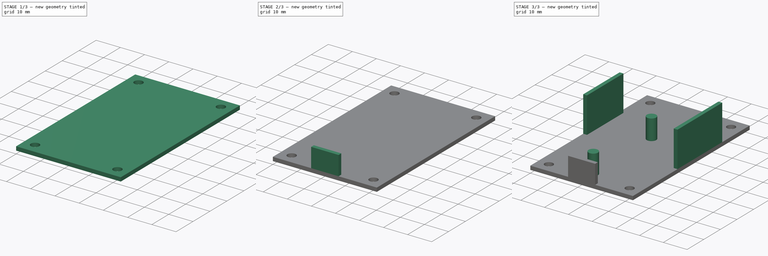
[diagram: build sequence overview — one tinted view per stage of 3, left to right]
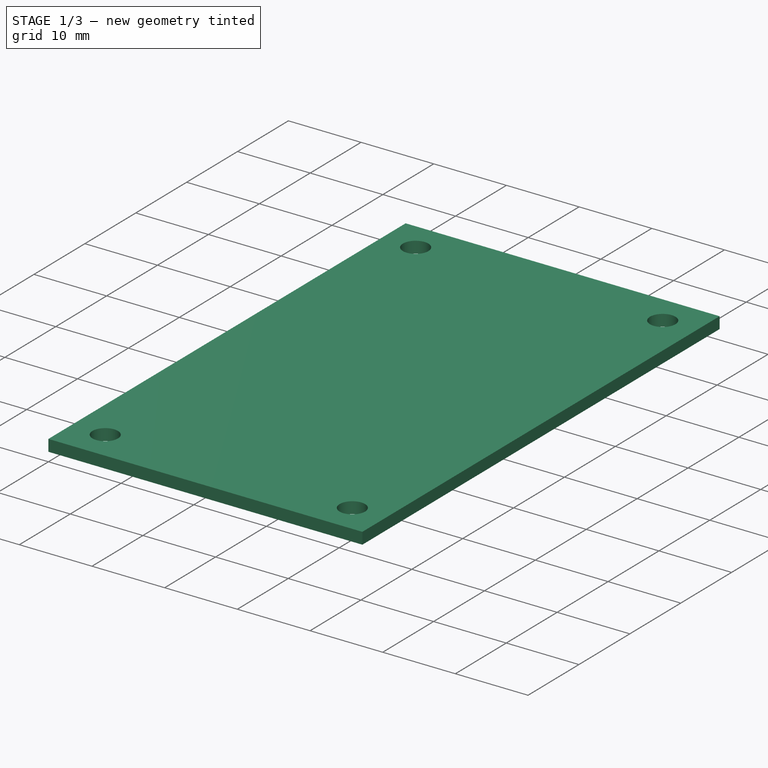
[diagram: stage 1 of 3 — iso view after this stage's code; geometry added in this stage tinted green]
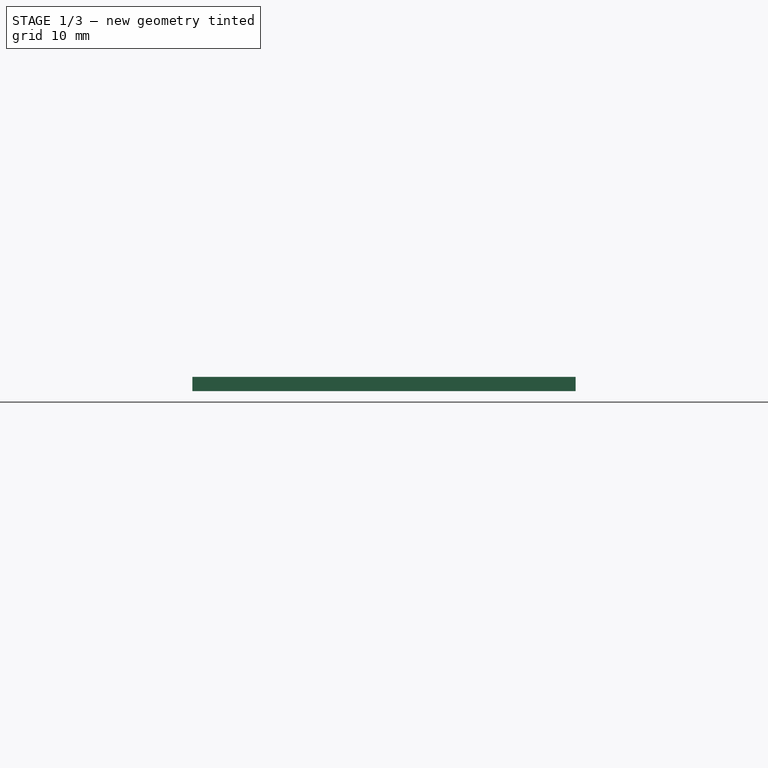
[diagram: stage 1 of 3 — front view after this stage's code; geometry added in this stage tinted green]
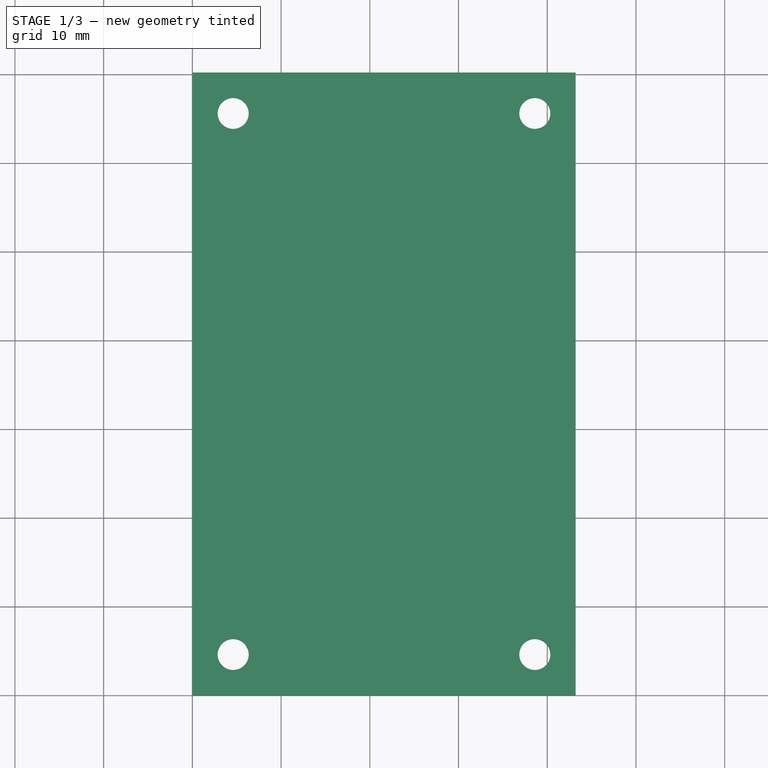
[diagram: stage 1 of 3 — top view after this stage's code; geometry added in this stage tinted green]
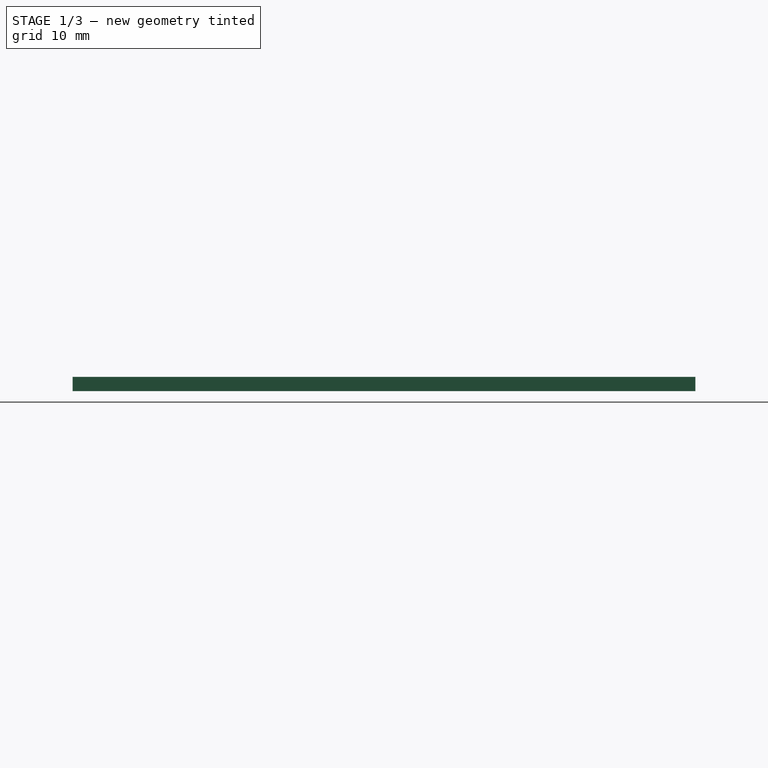
[diagram: stage 1 of 3 — right view after this stage's code; geometry added in this stage tinted green]
FCSTD DOCUMENT  (FreeCAD 0.19R)
Label: case_top
License: All rights reserved
LicenseURL: http://en.wikipedia.org/wiki/All_rights_reserved
objects: Sketcher::SketchObject×5, PartDesign::Pad×4, PartDesign::Pocket×1, PartDesign::Body×1
note: 16 computed .brp shape members not serialized (recipe doc carries the construction recipe); baked Part::Feature solids carry a one-line shape summary decoded from their .brp

FEATURE [Sketcher::SketchObject] Sketch
  FullyConstrained = true
  MapMode = 5
  Support = -> [XY_Plane]
  sketch-geometry (4):
    g0: LineSegment StartX=0 StartY=0 StartZ=0 EndX=43.2 EndY=0 EndZ=0
    g1: LineSegment StartX=43.2 StartY=0 StartZ=0 EndX=43.2 EndY=70.2 EndZ=0
    g2: LineSegment StartX=43.2 StartY=70.2 StartZ=0 EndX=0 EndY=70.2 EndZ=0
    g3: LineSegment StartX=0 StartY=70.2 StartZ=0 EndX=0 EndY=0 EndZ=0
  constraints (11):
    c: Coincident(g0,g1)
    c: Coincident(g1,g2)
    c: Coincident(g2,g3)
    c: Coincident(g3,g0)
    c: Horizontal(g0)
    c: Horizontal(g2)
    c: Vertical(g1)
    c: Vertical(g3)
    c: Coincident(g0,g-1)
    c: DistanceX(g0,g0) = 43.2
    c: DistanceY(g1,g1) = 70.2
FEATURE [PartDesign::Pad] Pad
  Direction = (1,1,1)
  Length = 1.6
  Length2 = 100
  Profile = -> Sketch
  Type = 0
FEATURE [Sketcher::SketchObject] Sketch007  label="Sketch001"
  FullyConstrained = true
  MapMode = 5
  Placement = pos=(0,0,1.6) rot=(0,0,1;0rad)
  Support = -> [Pad]
  sketch-geometry (4):
    g0: Circle CenterX=4.6 CenterY=4.6 CenterZ=0 NormalX=0 NormalY=0 NormalZ=1 AngleXU=0 Radius=1.75
    g1: Circle CenterX=38.6 CenterY=4.6 CenterZ=0 NormalX=0 NormalY=0 NormalZ=1 AngleXU=0 Radius=1.75
    g2: Circle CenterX=4.6 CenterY=65.6 CenterZ=0 NormalX=0 NormalY=0 NormalZ=1 AngleXU=0 Radius=1.75
    g3: Circle CenterX=38.6 CenterY=65.6 CenterZ=0 NormalX=0 NormalY=0 NormalZ=1 AngleXU=0 Radius=1.75
  constraints (12):
    c: Equal(g0,g1)
    c: Equal(g1,g3)
    c: Equal(g3,g2)
    c: Diameter(g3) = 3.5
    c: DistanceX(g-1,g0) = 4.6
    c: DistanceY(g-1,g0) = 4.6
    c: DistanceY(g1,g0) = 0
    c: DistanceX(g0,g1) = 34
    c: DistanceX(g1,g3) = 0
    c: DistanceY(g1,g3) = 61
    c: DistanceY(g3,g2) = 0
    c: DistanceX(g2,g0) = 0
FEATURE [PartDesign::Pocket] Pocket
  BaseFeature = -> Pad
  Length = 5
  Length2 = 100
  Profile = -> Sketch007
  Type = 2
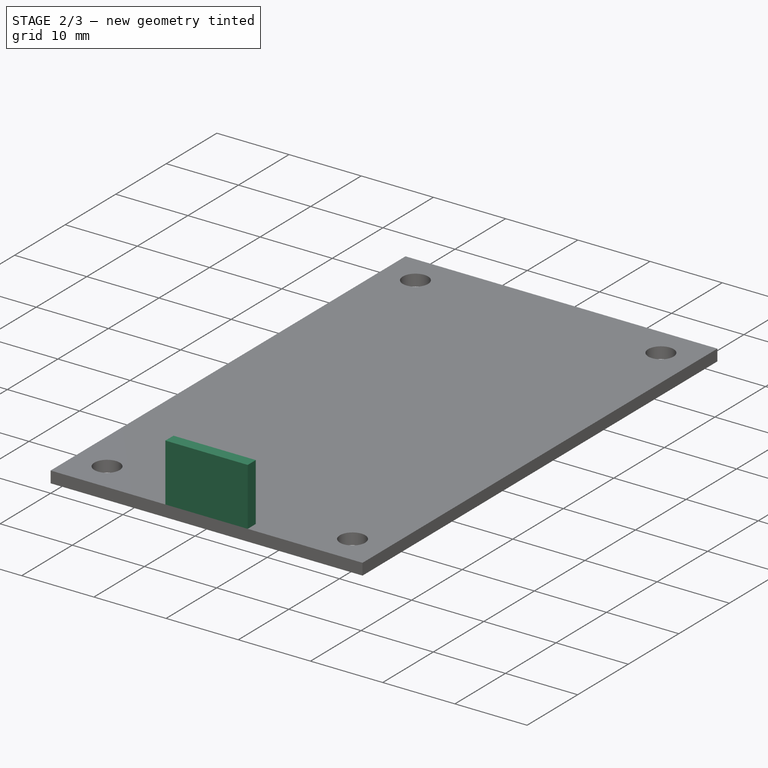
[diagram: stage 2 of 3 — iso view after this stage's code; geometry added in this stage tinted green]
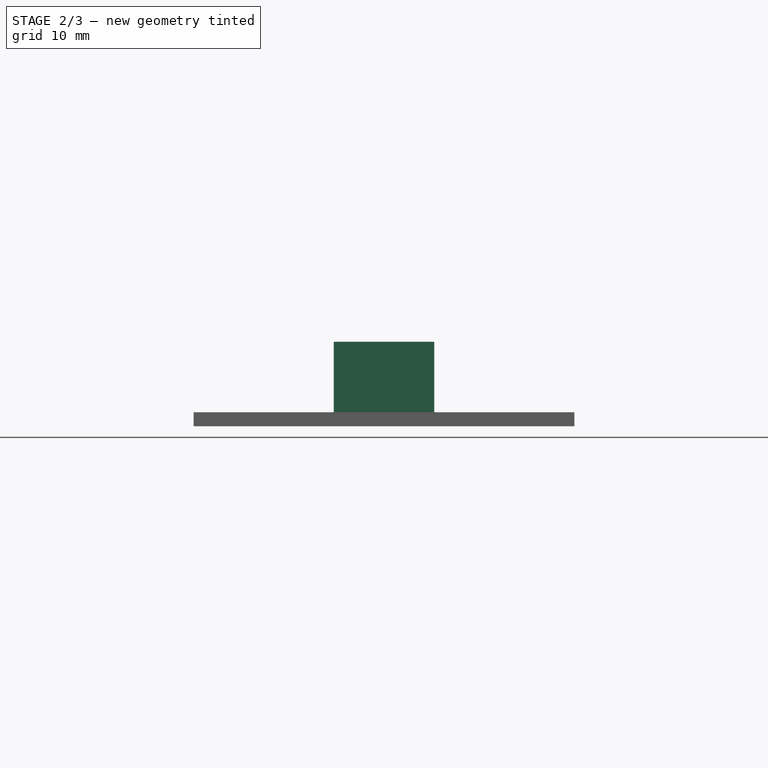
[diagram: stage 2 of 3 — front view after this stage's code; geometry added in this stage tinted green]
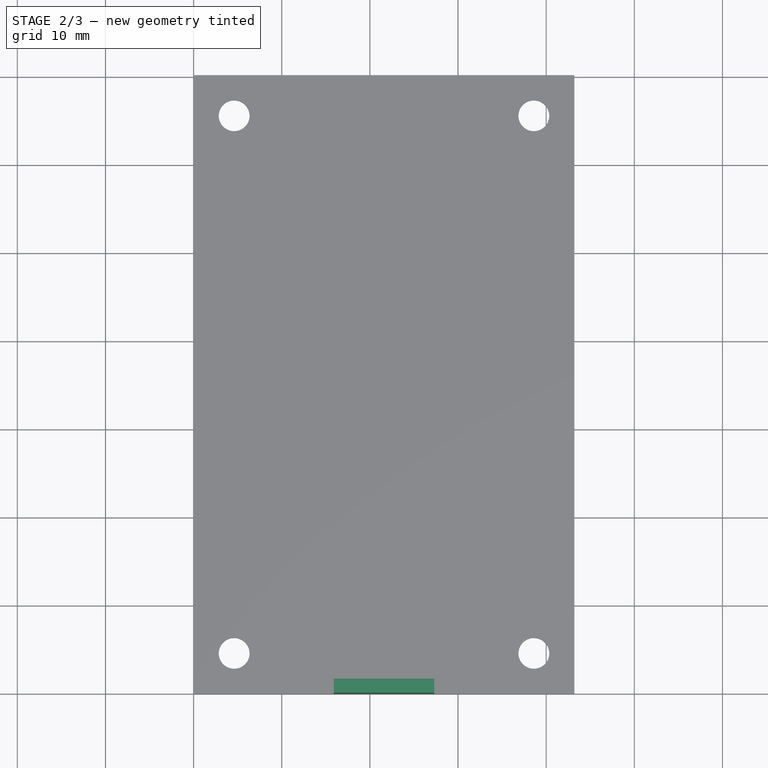
[diagram: stage 2 of 3 — top view after this stage's code; geometry added in this stage tinted green]
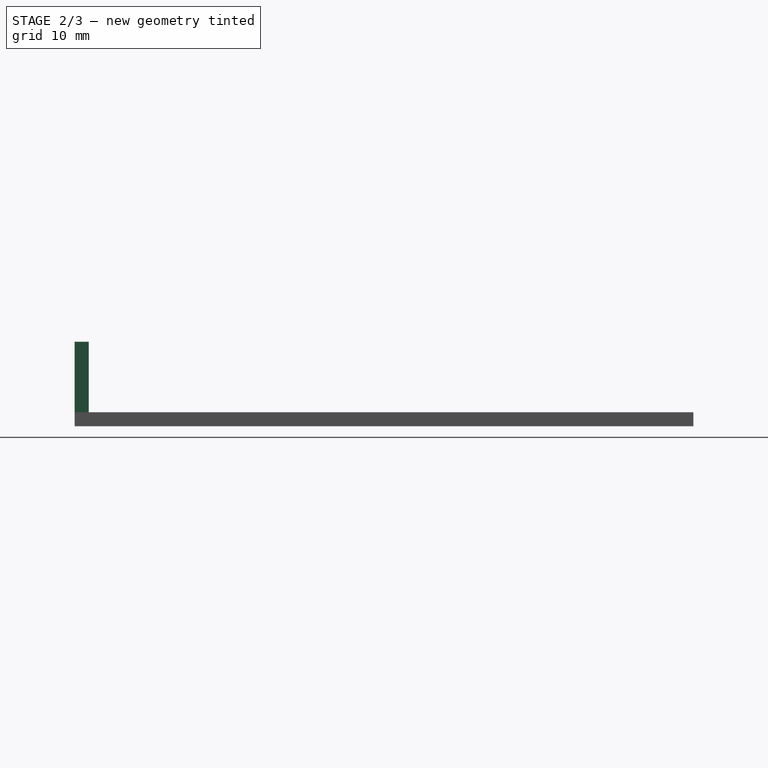
[diagram: stage 2 of 3 — right view after this stage's code; geometry added in this stage tinted green]
FEATURE [Sketcher::SketchObject] Sketch008
  FullyConstrained = true
  MapMode = 5
  Placement = pos=(0,0,1.6) rot=(0,0,1;0rad)
  Support = -> [Pocket]
  sketch-geometry (4):
    g0: LineSegment StartX=15.9 StartY=0 StartZ=0 EndX=27.3 EndY=0 EndZ=0
    g1: LineSegment StartX=27.3 StartY=0 StartZ=0 EndX=27.3 EndY=1.6 EndZ=0
    g2: LineSegment StartX=27.3 StartY=1.6 StartZ=0 EndX=15.9 EndY=1.6 EndZ=0
    g3: LineSegment StartX=15.9 StartY=1.6 StartZ=0 EndX=15.9 EndY=0 EndZ=0
  constraints (12):
    c: Coincident(g0,g1)
    c: Coincident(g1,g2)
    c: Coincident(g2,g3)
    c: Coincident(g3,g0)
    c: Horizontal(g0)
    c: Horizontal(g2)
    c: Vertical(g1)
    c: Vertical(g3)
    c: PointOnObject(g0,g-1)
    c: DistanceX(g-1,g0) = 15.9
    c: DistanceX(g0,g0) = 11.4
    c: DistanceY(g1,g1) = 1.6
FEATURE [PartDesign::Pad] Pad001
  BaseFeature = -> Pocket
  Direction = (1,1,1)
  Length = 8
  Length2 = 100
  Profile = -> Sketch008
  Type = 0
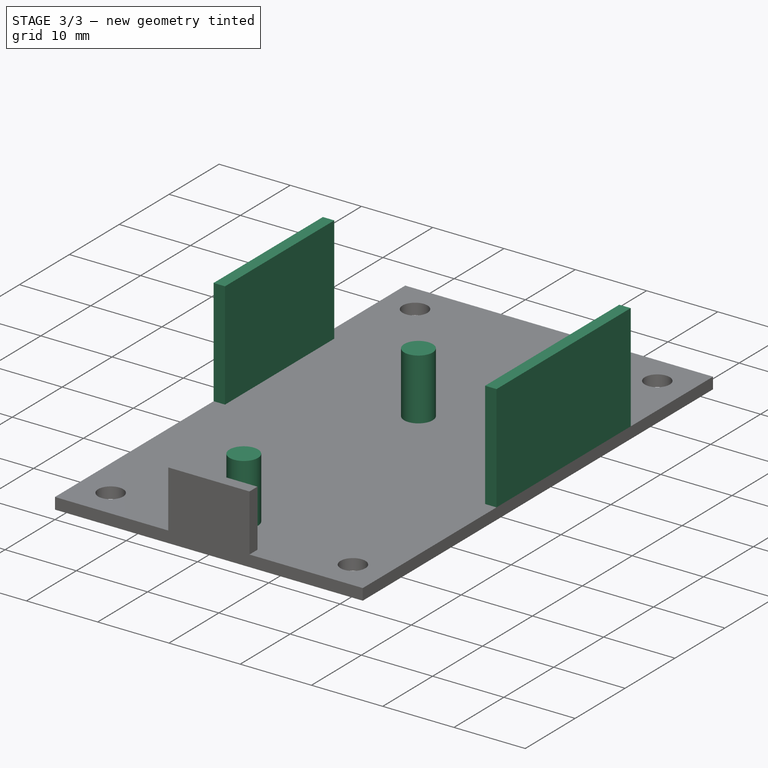
[diagram: stage 3 of 3 — iso view after this stage's code; geometry added in this stage tinted green]
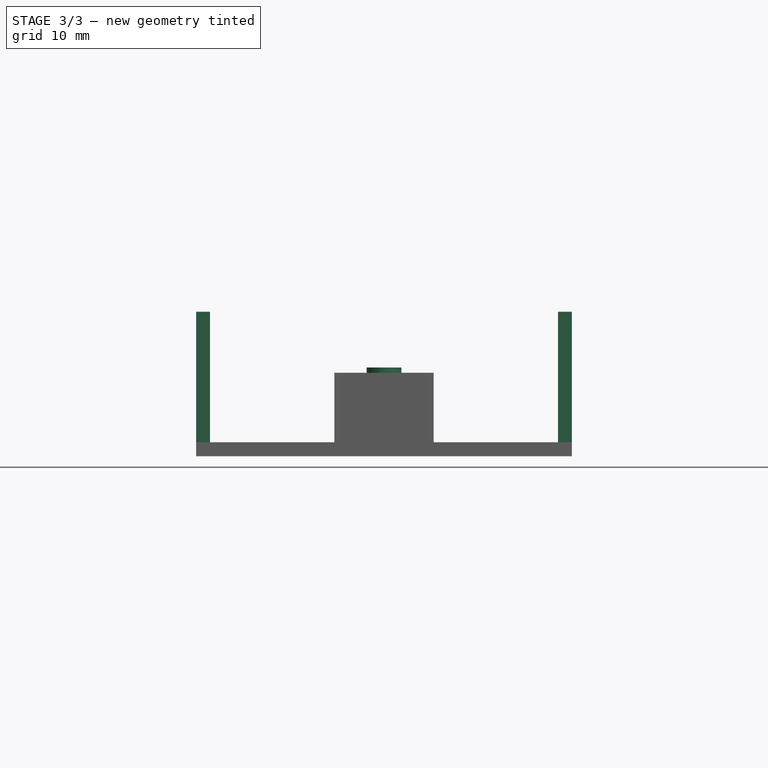
[diagram: stage 3 of 3 — front view after this stage's code; geometry added in this stage tinted green]
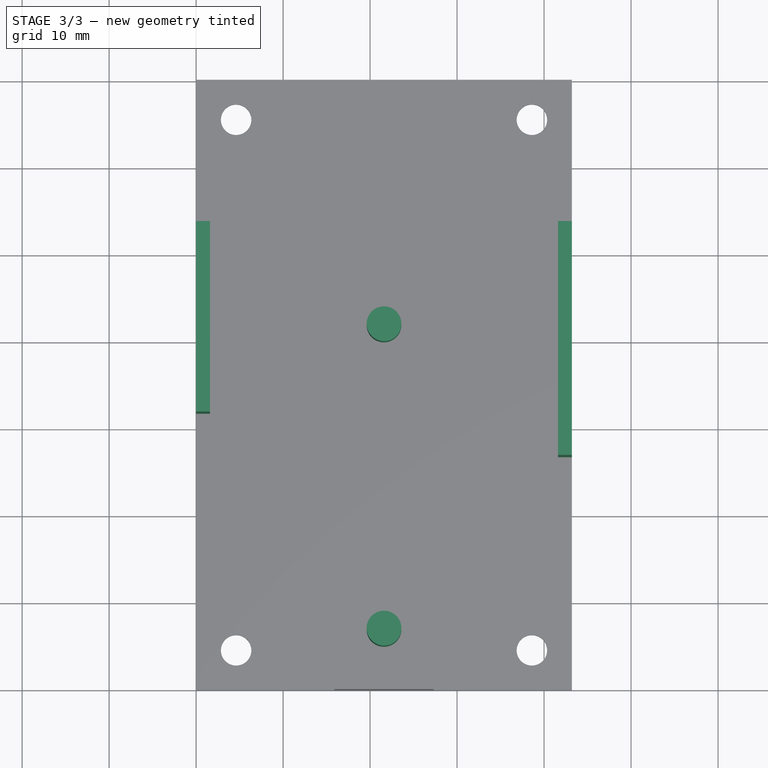
[diagram: stage 3 of 3 — top view after this stage's code; geometry added in this stage tinted green]
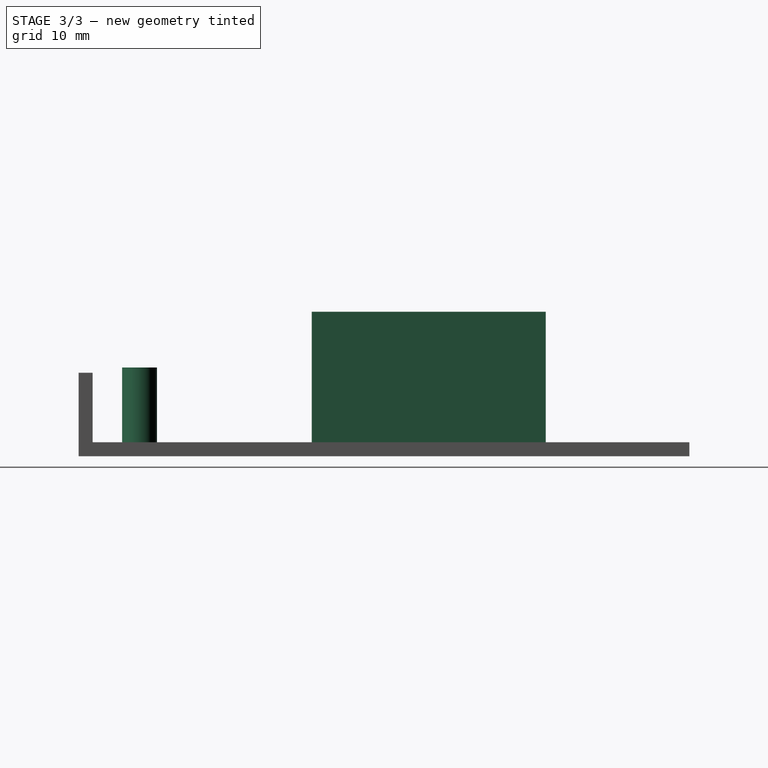
[diagram: stage 3 of 3 — right view after this stage's code; geometry added in this stage tinted green]
FEATURE [Sketcher::SketchObject] Sketch009
  FullyConstrained = true
  MapMode = 5
  Placement = pos=(0,0,1.6) rot=(0,0,1;0rad)
  Support = -> [Pad001]
  sketch-geometry (8):
    g0: LineSegment StartX=0 StartY=31.8 StartZ=0 EndX=1.6 EndY=31.8 EndZ=0
    g1: LineSegment StartX=1.6 StartY=31.8 StartZ=0 EndX=1.6 EndY=53.7 EndZ=0
    g2: LineSegment StartX=1.6 StartY=53.7 StartZ=0 EndX=0 EndY=53.7 EndZ=0
    g3: LineSegment StartX=0 StartY=53.7 StartZ=0 EndX=0 EndY=31.8 EndZ=0
    g4: LineSegment StartX=41.6 StartY=53.7 StartZ=0 EndX=43.2 EndY=53.7 EndZ=0
    g5: LineSegment StartX=43.2 StartY=53.7 StartZ=0 EndX=43.2 EndY=26.8 EndZ=0
    g6: LineSegment StartX=43.2 StartY=26.8 StartZ=0 EndX=41.6 EndY=26.8 EndZ=0
    g7: LineSegment StartX=41.6 StartY=26.8 StartZ=0 EndX=41.6 EndY=53.7 EndZ=0
  constraints (24):
    c: Coincident(g0,g1)
    c: Coincident(g1,g2)
    c: Coincident(g2,g3)
    c: Coincident(g3,g0)
    c: Horizontal(g0)
    c: Horizontal(g2)
    c: Vertical(g1)
    c: Vertical(g3)
    c: PointOnObject(g0,g-2)
    c: Coincident(g4,g5)
    c: Coincident(g5,g6)
    c: Coincident(g6,g7)
    c: Coincident(g7,g4)
    c: Horizontal(g4)
    c: Horizontal(g6)
    c: Vertical(g5)
    c: Vertical(g7)
    c: DistanceX(g-1,g5) = 43.2
    c: DistanceX(g0,g0) = 1.6
    c: DistanceX(g6,g6) = 1.6
    c: DistanceY(g-1,g5) = 26.8
    c: DistanceY(g-1,g2) = 53.7
    c: DistanceY(g1,g4) = 0
    c: DistanceY(g-1,g0) = 31.8
FEATURE [PartDesign::Pad] Pad002
  BaseFeature = -> Pad001
  Direction = (1,1,1)
  Length = 15
  Length2 = 100
  Profile = -> Sketch009
  Type = 0
FEATURE [Sketcher::SketchObject] Sketch010
  FullyConstrained = true
  MapMode = 5
  Placement = pos=(0,0,1.6) rot=(0,0,1;0rad)
  Support = -> [Pad002]
  sketch-geometry (2):
    g0: Circle CenterX=21.6 CenterY=42 CenterZ=0 NormalX=0 NormalY=0 NormalZ=1 AngleXU=0 Radius=2
    g1: Circle CenterX=21.6 CenterY=7 CenterZ=0 NormalX=0 NormalY=0 NormalZ=1 AngleXU=0 Radius=2
  constraints (6):
    c: DistanceX(g-1,g1) = 21.6
    c: DistanceX(g1,g0) = 0
    c: DistanceY(g-1,g1) = 7
    c: Equal(g1,g0)
    c: Diameter(g0) = 4
    c: DistanceY(g-1,g0) = 42
FEATURE [PartDesign::Pad] Pad003
  BaseFeature = -> Pad002
  Direction = (1,1,1)
  Length = 8.6
  Length2 = 100
  Profile = -> Sketch010
  Type = 0
FEATURE [PartDesign::Body] Body
  Group = -> [Sketch,Pad,Sketch007,Pocket,Sketch008,Pad001,Sketch009,Pad002,Sketch010,Pad003]
  Origin = -> Origin
  Tip = -> Pad003
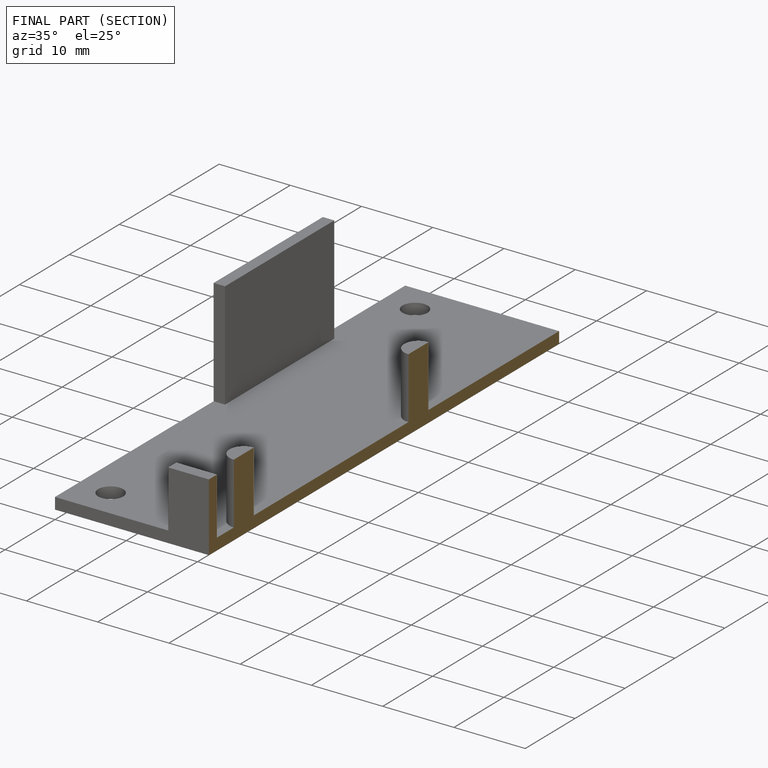
[diagram: finished part — half-section view (interior)]
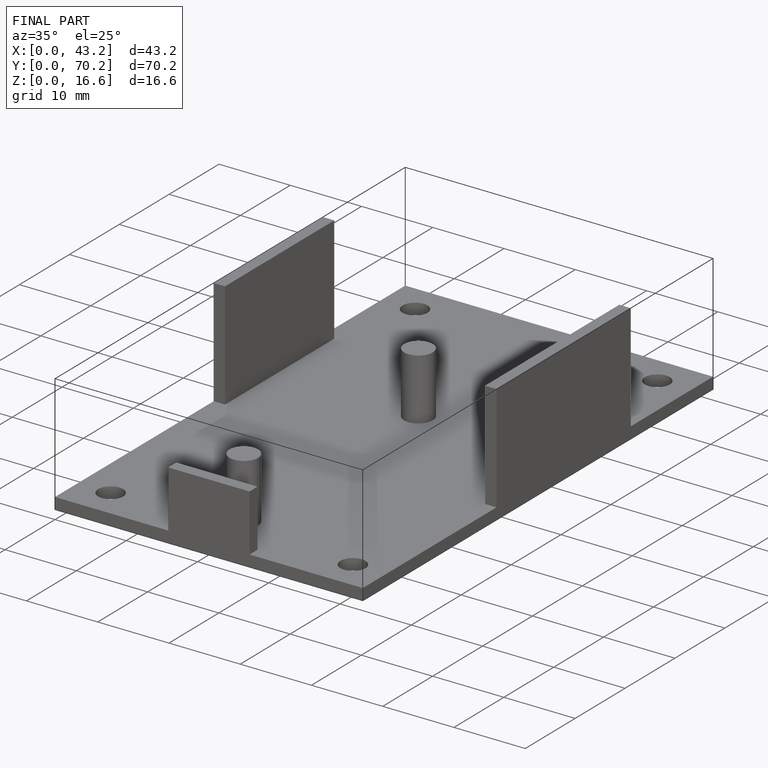
[diagram: finished part — iso view with bounding-box wireframe]
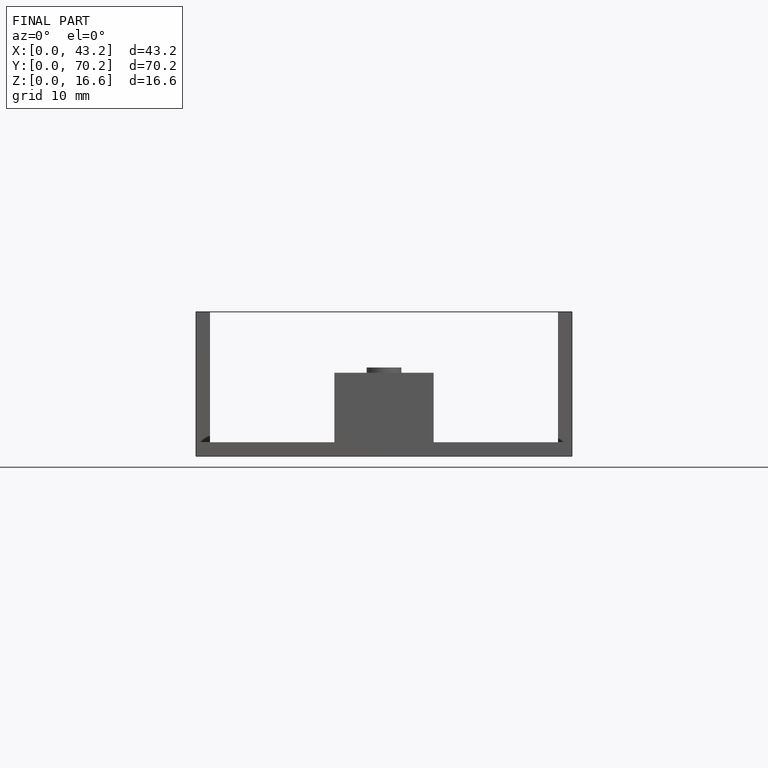
[diagram: finished part — front view with bounding-box wireframe]
